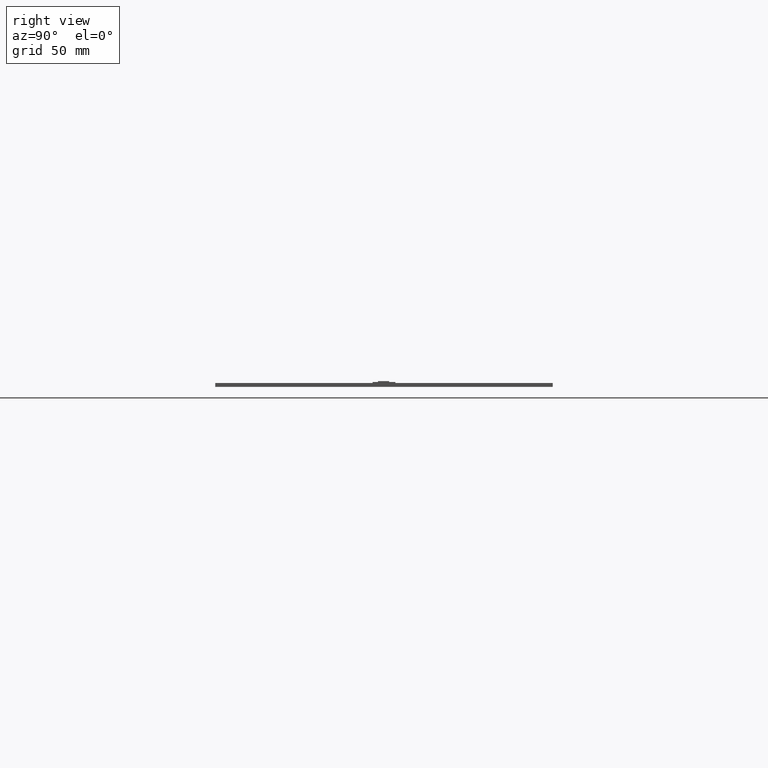
[diagram: clean part render]
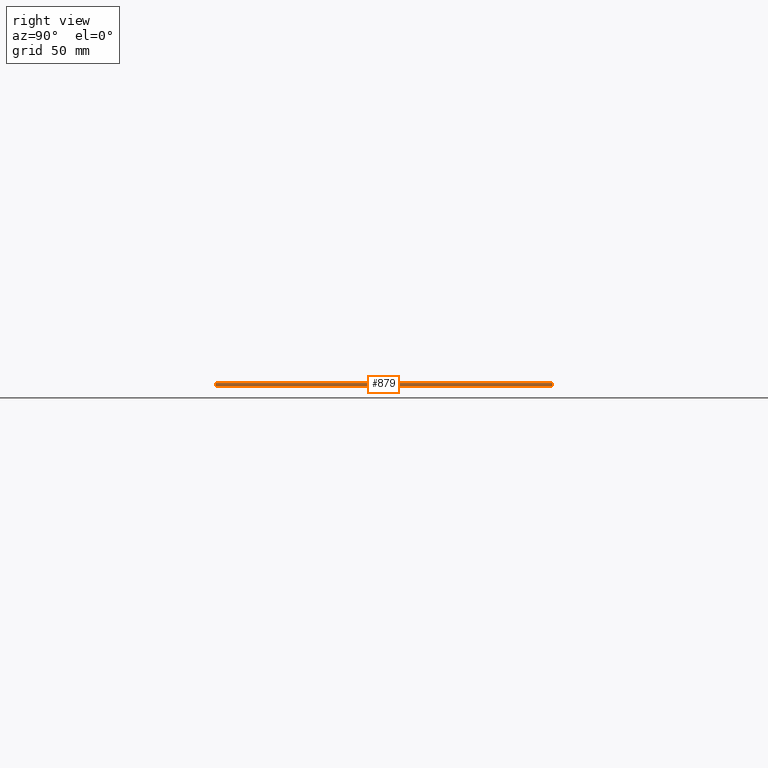
[diagram: same view with one face highlighted and labeled with its STEP entity id]
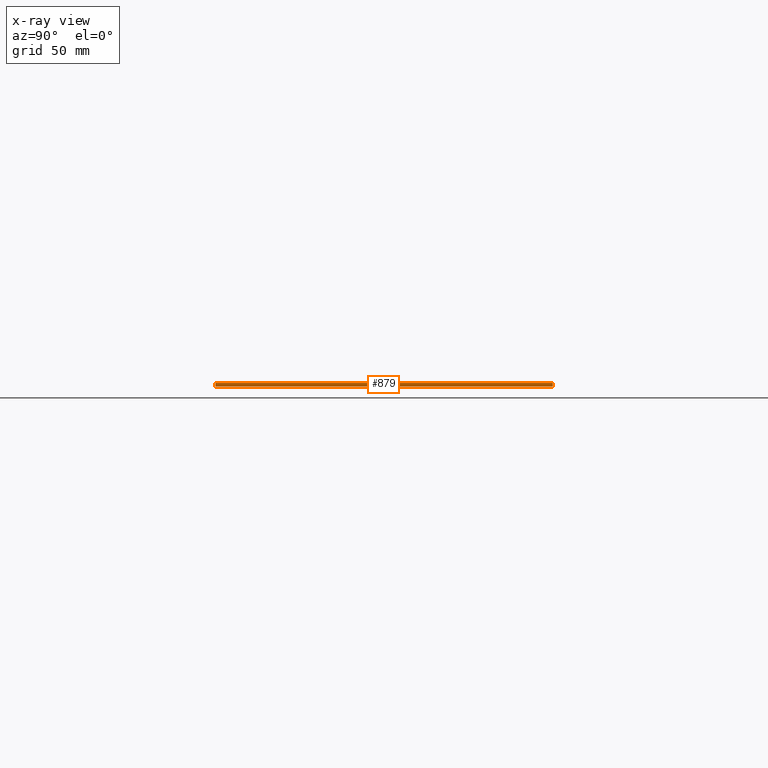
[diagram: x-ray of the same camera — body ghosted, the highlighted face saturated]
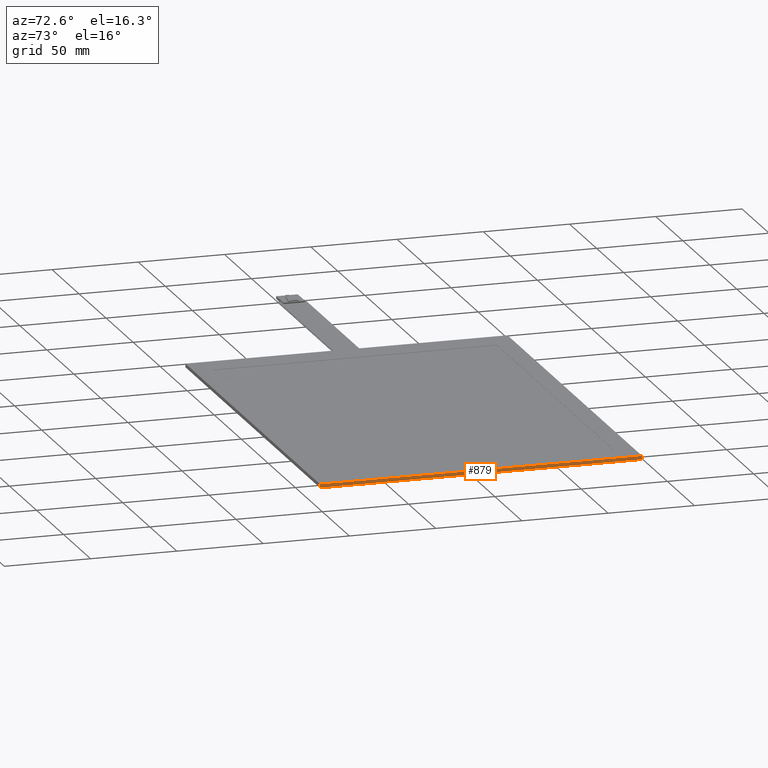
[diagram: same view with one face highlighted and labeled with its STEP entity id]
A machine part, right view. The second image highlights one B-rep face of the part: STEP entity #879.
The next image is the same camera in x-ray: the body ghosted, the highlighted face saturated — about 0% of this face is hidden behind the body in this view.
A second angle (auxiliary view) of the same face is appended — the face is thin or edge-on in the first view.
In plain terms, the highlighted planar face has unit normal (1, 0, 0).
Its self-contained STEP definition (entity closure, byte-faithful):
#101=FACE_OUTER_BOUND('',#146,.T.);
#146=EDGE_LOOP('',(#777,#778,#779,#780));
#259=LINE('',#1370,#373);
#260=LINE('',#1373,#374);
#261=LINE('',#1375,#375);
#262=LINE('',#1376,#376);
#373=VECTOR('',#1134,10.);
#374=VECTOR('',#1137,10.);
#375=VECTOR('',#1138,10.);
#376=VECTOR('',#1139,10.);
#451=VERTEX_POINT('',#1366);
#452=VERTEX_POINT('',#1368);
#453=VERTEX_POINT('',#1372);
#454=VERTEX_POINT('',#1374);
#563=EDGE_CURVE('',#451,#452,#259,.T.);
#564=EDGE_CURVE('',#451,#453,#260,.T.);
#565=EDGE_CURVE('',#454,#452,#261,.T.);
#566=EDGE_CURVE('',#453,#454,#262,.T.);
#777=ORIENTED_EDGE('',*,*,#564,.F.);
#778=ORIENTED_EDGE('',*,*,#563,.T.);
#779=ORIENTED_EDGE('',*,*,#565,.F.);
#780=ORIENTED_EDGE('',*,*,#566,.F.);
#836=PLANE('',#942);
#879=ADVANCED_FACE('',(#101),#836,.T.);
#942=AXIS2_PLACEMENT_3D('',#1371,#1135,#1136);
#1134=DIRECTION('',(0.,0.,-1.));
#1135=DIRECTION('center_axis',(1.,9.51500797793267E-17,0.));
#1136=DIRECTION('ref_axis',(9.51500797793267E-17,-1.,0.));
#1137=DIRECTION('',(-9.51500797793267E-17,1.,0.));
#1138=DIRECTION('',(9.51500797793267E-17,-1.,0.));
#1139=DIRECTION('',(0.,0.,-1.));
#1366=CARTESIAN_POINT('',(124.46,-93.345,0.));
#1368=CARTESIAN_POINT('',(124.46,-93.345,-2.1));
#1370=CARTESIAN_POINT('',(124.46,-93.345,0.));
#1371=CARTESIAN_POINT('Origin',(124.46,93.345,0.));
#1372=CARTESIAN_POINT('',(124.46,93.345,0.));
#1373=CARTESIAN_POINT('',(124.46,-93.345,0.));
#1374=CARTESIAN_POINT('',(124.46,93.345,-2.1));
#1375=CARTESIAN_POINT('',(124.46,-93.345,-2.1));
#1376=CARTESIAN_POINT('',(124.46,93.345,0.));